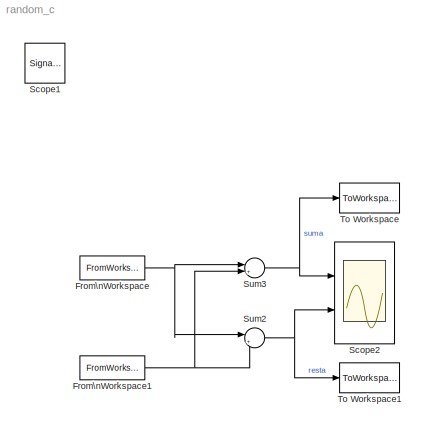
MODEL random_c
KIND model
BLOCK [FromWorkspace] From\nWorkspace
  Interpolate = off
  OutputAfterFinalValue = Setting to zero
  SampleTime = 0.1
  VariableName = dato1
  ZeroCross = on
BLOCK [FromWorkspace] From\nWorkspace1
  Interpolate = off
  OutputAfterFinalValue = Setting to zero
  SampleTime = 0.1
  VariableName = dato2
  ZeroCross = on
BLOCK [SignalViewerScope] Scope1
  DataFormat = Array
  IOType = viewer
  MaxDataPoints = 7500
  NumInputPorts = 1
  Ports = []
  RefreshTime = 0.035000
  ShowDataMarkers = off
  ShowLegends = off
BLOCK [Scope] Scope2
  DataFormat = StructureWithTime
  Floating = off
  NumInputPorts = 2
  Ports = [2]
  SampleTime = 0
  SaveName = ScopeData2
  YMax = 5~5
  YMin = -5~-5
  ZoomMode = xonly
BLOCK [Sum] Sum2
  IconShape = round
  InputSameDT = off
  Inputs = |+-
  OutDataType = sfix(16)
  OutDataTypeMode = Inherit via internal rule
  OutDataTypeStr = Inherit: Inherit via internal rule
  OutScaling = 2^0
  Ports = [2, 1]
  SaturateOnIntegerOverflow = off
BLOCK [Sum] Sum3
  IconShape = round
  InputSameDT = off
  Inputs = |++
  OutDataType = sfix(16)
  OutDataTypeMode = Inherit via internal rule
  OutDataTypeStr = Inherit: Inherit via internal rule
  OutScaling = 2^0
  Ports = [2, 1]
  SaturateOnIntegerOverflow = off
BLOCK [ToWorkspace] To Workspace
  MaxDataPoints = inf
  SampleTime = 1
  SaveFormat = Array
  VariableName = suma1
BLOCK [ToWorkspace] To Workspace1
  MaxDataPoints = inf
  SampleTime = 1
  SaveFormat = Array
  VariableName = resta1
NET From\nWorkspace1:1 -> Sum2:2, Sum3:2
NET From\nWorkspace:1 -> Sum2:1, Sum3:1
NET Sum2:1 -> Scope2:2, To Workspace1:1
NET Sum3:1 -> Scope2:1, To Workspace:1
note: NET lines group one-source signal fan-out (src -> all destinations, sorted); 1:1 wires keep LINE
